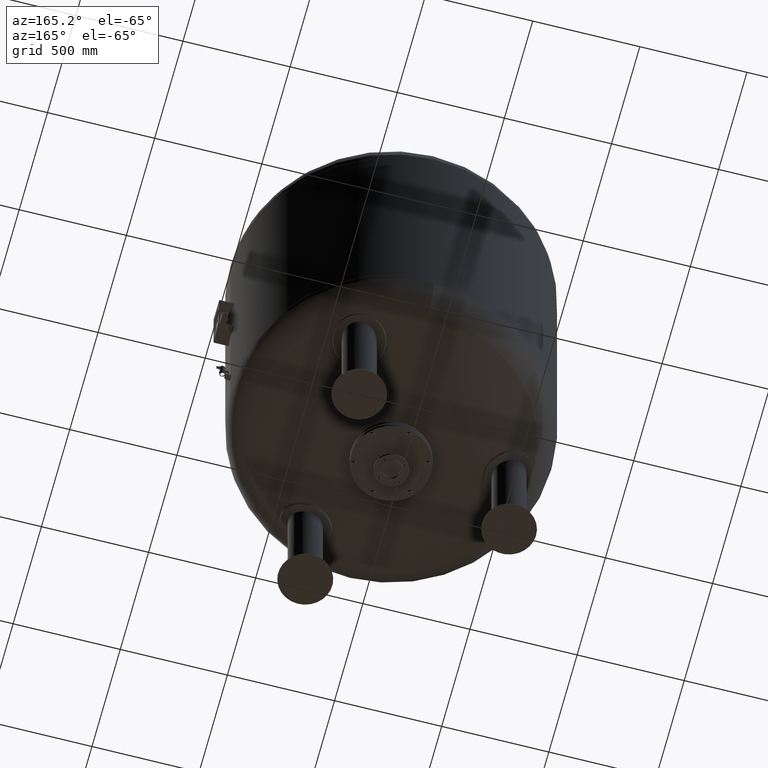
[diagram: clean part render]
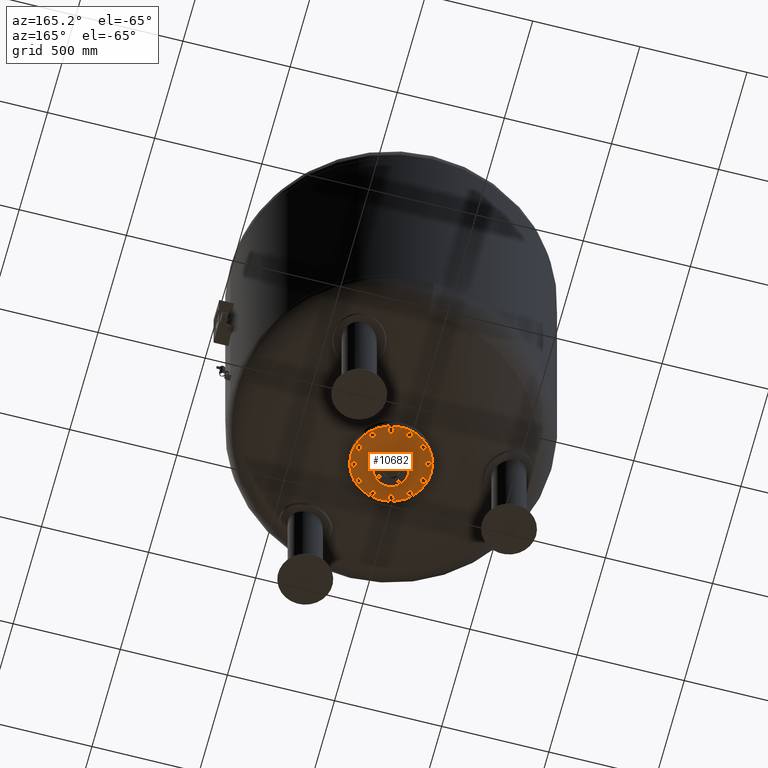
[diagram: same view with one face highlighted and labeled with its STEP entity id]
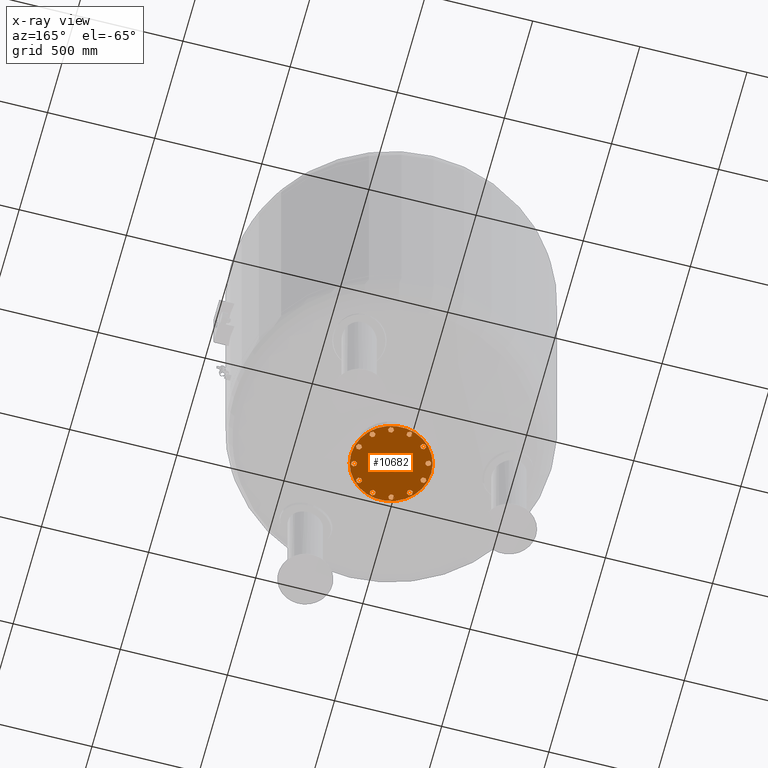
[diagram: x-ray of the same camera — body ghosted, the highlighted face saturated]
A machine part, auxiliary view. The second image highlights one B-rep face of the part: STEP entity #10682.
The next image is the same camera in x-ray: the body ghosted, the highlighted face saturated — about 0% of this face is hidden behind the body in this view.
In plain terms, the highlighted planar face has unit normal (0, 0, -1).
Its self-contained STEP definition (entity closure, byte-faithful):
#2826=CARTESIAN_POINT('',(-38.050000000000018,-4.163799E-015,413.0));
#2827=VERTEX_POINT('',#2826);
#2843=CARTESIAN_POINT('',(38.049999999999983,-8.823426E-015,413.0));
#2844=VERTEX_POINT('',#2843);
#2851=CARTESIAN_POINT('',(-8.604691E-015,-4.163799E-015,413.0));
#2852=DIRECTION('',(0.0,0.0,-1.0));
#2853=DIRECTION('',(-1.0,0.0,0.0));
#2854=AXIS2_PLACEMENT_3D('',#2851,#2852,#2853);
#2855=CIRCLE('',#2854,38.050000000000004);
#2856=EDGE_CURVE('',#2844,#2827,#2855,.T.);
#2866=CARTESIAN_POINT('',(-187.500000000000000,-4.163799E-015,413.000000000000110));
#2867=VERTEX_POINT('',#2866);
#2876=CARTESIAN_POINT('',(187.500000000000000,-2.712517E-014,413.000000000000110));
#2877=VERTEX_POINT('',#2876);
#2878=CARTESIAN_POINT('',(-8.604691E-015,-4.163799E-015,413.000000000000110));
#2879=DIRECTION('',(0.0,0.0,-1.0));
#2880=DIRECTION('',(-1.0,0.0,0.0));
#2881=AXIS2_PLACEMENT_3D('',#2878,#2879,#2880);
#2882=CIRCLE('',#2881,187.500000000000000);
#2883=EDGE_CURVE('',#2877,#2867,#2882,.T.);
#4856=CARTESIAN_POINT('',(43.352190054672320,-175.648982363969960,413.0));
#4857=VERTEX_POINT('',#4856);
#4858=CARTESIAN_POINT('',(55.352190054672313,-168.720779133694460,413.0));
#4859=VERTEX_POINT('',#4858);
#4860=CARTESIAN_POINT('',(43.352190054672320,-175.648982363969960,413.0));
#4861=DIRECTION('',(0.866025403784439,0.500000000000000,0.0));
#4862=VECTOR('',#4861,13.856406460551009);
#4863=LINE('',#4860,#4862);
#4864=EDGE_CURVE('',#4857,#4859,#4863,.T.);
#4896=CARTESIAN_POINT('',(31.352190054672334,-168.720779133694460,413.0));
#4897=VERTEX_POINT('',#4896);
#4898=CARTESIAN_POINT('',(31.352190054672334,-168.720779133694460,413.0));
#4899=DIRECTION('',(0.866025403784439,-0.500000000000000,0.0));
#4900=VECTOR('',#4899,13.856406460551002);
#4901=LINE('',#4898,#4900);
#4902=EDGE_CURVE('',#4897,#4857,#4901,.T.);
#4927=CARTESIAN_POINT('',(31.352190054672349,-154.864372673143440,413.0));
#4928=VERTEX_POINT('',#4927);
#4929=CARTESIAN_POINT('',(31.352190054672349,-154.864372673143440,413.0));
#4930=DIRECTION('',(0.0,-1.0,0.0));
#4931=VECTOR('',#4930,13.856406460551028);
#4932=LINE('',#4929,#4931);
#4933=EDGE_CURVE('',#4928,#4897,#4932,.T.);
#4958=CARTESIAN_POINT('',(43.352190054672320,-147.936169442867940,413.0));
#4959=VERTEX_POINT('',#4958);
#4960=CARTESIAN_POINT('',(43.352190054672320,-147.936169442867940,413.0));
#4961=DIRECTION('',(-0.866025403784438,-0.500000000000000,0.0));
#4962=VECTOR('',#4961,13.856406460550989);
#4963=LINE('',#4960,#4962);
#4964=EDGE_CURVE('',#4959,#4928,#4963,.T.);
#4989=CARTESIAN_POINT('',(55.352190054672313,-154.864372673143440,413.0));
#4990=VERTEX_POINT('',#4989);
#4991=CARTESIAN_POINT('',(55.352190054672313,-168.720779133694460,413.0));
#4992=DIRECTION('',(0.0,1.0,0.0));
#4993=VECTOR('',#4992,13.856406460551028);
#4994=LINE('',#4991,#4993);
#4995=EDGE_CURVE('',#4859,#4990,#4994,.T.);
#5020=CARTESIAN_POINT('',(55.352190054672313,-154.864372673143440,413.0));
#5021=DIRECTION('',(-0.866025403784439,0.500000000000000,0.0));
#5022=VECTOR('',#5021,13.856406460551009);
#5023=LINE('',#5020,#5022);
#5024=EDGE_CURVE('',#4990,#4959,#5023,.T.);
#5330=CARTESIAN_POINT('',(125.368589079022360,-130.440385848746640,413.0));
#5331=VERTEX_POINT('',#5330);
#5332=CARTESIAN_POINT('',(132.296792309297840,-118.440385848746640,413.0));
#5333=VERTEX_POINT('',#5332);
#5334=CARTESIAN_POINT('',(125.368589079022360,-130.440385848746640,413.0));
#5335=DIRECTION('',(0.499999999999999,0.866025403784439,0.0));
#5336=VECTOR('',#5335,13.856406460551007);
#5337=LINE('',#5334,#5336);
#5338=EDGE_CURVE('',#5331,#5333,#5337,.T.);
#5370=CARTESIAN_POINT('',(111.512182618471340,-130.440385848746640,413.0));
#5371=VERTEX_POINT('',#5370);
#5372=CARTESIAN_POINT('',(111.512182618471340,-130.440385848746640,413.0));
#5373=DIRECTION('',(1.0,0.0,0.0));
#5374=VECTOR('',#5373,13.856406460551014);
#5375=LINE('',#5372,#5374);
#5376=EDGE_CURVE('',#5371,#5331,#5375,.T.);
#5401=CARTESIAN_POINT('',(104.583979388195840,-118.440385848746660,413.0));
#5402=VERTEX_POINT('',#5401);
#5403=CARTESIAN_POINT('',(104.583979388195840,-118.440385848746660,413.0));
#5404=DIRECTION('',(0.500000000000000,-0.866025403784439,0.0));
#5405=VECTOR('',#5404,13.856406460551002);
#5406=LINE('',#5403,#5405);
#5407=EDGE_CURVE('',#5402,#5371,#5406,.T.);
#5432=CARTESIAN_POINT('',(111.512182618471340,-106.440385848746640,413.0));
#5433=VERTEX_POINT('',#5432);
#5434=CARTESIAN_POINT('',(111.512182618471340,-106.440385848746640,413.0));
#5435=DIRECTION('',(-0.499999999999999,-0.866025403784439,0.0));
#5436=VECTOR('',#5435,13.856406460551026);
#5437=LINE('',#5434,#5436);
#5438=EDGE_CURVE('',#5433,#5402,#5437,.T.);
#5463=CARTESIAN_POINT('',(125.368589079022340,-106.440385848746640,413.0));
#5464=VERTEX_POINT('',#5463);
#5465=CARTESIAN_POINT('',(132.296792309297840,-118.440385848746640,413.0));
#5466=DIRECTION('',(-0.500000000000000,0.866025403784439,0.0));
#5467=VECTOR('',#5466,13.856406460551014);
#5468=LINE('',#5465,#5467);
#5469=EDGE_CURVE('',#5333,#5464,#5468,.T.);
#5494=CARTESIAN_POINT('',(125.368589079022340,-106.440385848746640,413.0));
#5495=DIRECTION('',(-1.0,0.0,0.0));
#5496=VECTOR('',#5495,13.856406460551000);
#5497=LINE('',#5494,#5496);
#5498=EDGE_CURVE('',#5464,#5433,#5497,.T.);
#5804=CARTESIAN_POINT('',(173.792575903418990,-50.280393284947714,413.0));
#5805=VERTEX_POINT('',#5804);
#5806=CARTESIAN_POINT('',(173.792575903418990,-36.423986824396700,413.0));
#5807=VERTEX_POINT('',#5806);
#5808=CARTESIAN_POINT('',(173.792575903418990,-50.280393284947714,413.0));
#5809=DIRECTION('',(0.0,1.0,0.0));
#5810=VECTOR('',#5809,13.856406460551014);
#5811=LINE('',#5808,#5810);
#5812=EDGE_CURVE('',#5805,#5807,#5811,.T.);
#5844=CARTESIAN_POINT('',(161.792575903418990,-57.208596515223185,413.0));
#5845=VERTEX_POINT('',#5844);
#5846=CARTESIAN_POINT('',(161.792575903418990,-57.208596515223185,413.0));
#5847=DIRECTION('',(0.866025403784440,0.499999999999998,0.0));
#5848=VECTOR('',#5847,13.856406460551000);
#5849=LINE('',#5846,#5848);
#5850=EDGE_CURVE('',#5845,#5805,#5849,.T.);
#5875=CARTESIAN_POINT('',(149.792575903418990,-50.280393284947706,413.0));
#5876=VERTEX_POINT('',#5875);
#5877=CARTESIAN_POINT('',(149.792575903418990,-50.280393284947706,413.0));
#5878=DIRECTION('',(0.866025403784440,-0.499999999999998,0.0));
#5879=VECTOR('',#5878,13.856406460551003);
#5880=LINE('',#5877,#5879);
#5881=EDGE_CURVE('',#5876,#5845,#5880,.T.);
#5906=CARTESIAN_POINT('',(149.792575903419020,-36.423986824396692,413.0));
#5907=VERTEX_POINT('',#5906);
#5908=CARTESIAN_POINT('',(149.792575903419020,-36.423986824396692,413.0));
#5909=DIRECTION('',(0.0,-1.0,0.0));
#5910=VECTOR('',#5909,13.856406460551014);
#5911=LINE('',#5908,#5910);
#5912=EDGE_CURVE('',#5907,#5876,#5911,.T.);
#5937=CARTESIAN_POINT('',(161.792575903418990,-29.495783594121182,413.0));
#5938=VERTEX_POINT('',#5937);
#5939=CARTESIAN_POINT('',(173.792575903418990,-36.423986824396700,413.0));
#5940=DIRECTION('',(-0.866025403784438,0.500000000000000,0.0));
#5941=VECTOR('',#5940,13.856406460551023);
#5942=LINE('',#5939,#5941);
#5943=EDGE_CURVE('',#5807,#5938,#5942,.T.);
#5968=CARTESIAN_POINT('',(161.792575903418990,-29.495783594121182,413.0));
#5969=DIRECTION('',(-0.866025403784438,-0.500000000000001,0.0));
#5970=VECTOR('',#5969,13.856406460550994);
#5971=LINE('',#5968,#5970);
#5972=EDGE_CURVE('',#5938,#5907,#5971,.T.);
#6278=CARTESIAN_POINT('',(175.648982363969960,43.352190054672327,413.0));
#6279=VERTEX_POINT('',#6278);
#6280=CARTESIAN_POINT('',(168.720779133694460,55.352190054672320,413.0));
#6281=VERTEX_POINT('',#6280);
#6282=CARTESIAN_POINT('',(175.648982363969960,43.352190054672327,413.0));
#6283=DIRECTION('',(-0.500000000000000,0.866025403784439,0.0));
#6284=VECTOR('',#6283,13.856406460551009);
#6285=LINE('',#6282,#6284);
#6286=EDGE_CURVE('',#6279,#6281,#6285,.T.);
#6318=CARTESIAN_POINT('',(168.720779133694460,31.352190054672338,413.0));
#6319=VERTEX_POINT('',#6318);
#6320=CARTESIAN_POINT('',(168.720779133694460,31.352190054672338,413.0));
#6321=DIRECTION('',(0.500000000000000,0.866025403784439,0.0));
#6322=VECTOR('',#6321,13.856406460551003);
#6323=LINE('',#6320,#6322);
#6324=EDGE_CURVE('',#6319,#6279,#6323,.T.);
#6349=CARTESIAN_POINT('',(154.864372673143440,31.352190054672352,413.0));
#6350=VERTEX_POINT('',#6349);
#6351=CARTESIAN_POINT('',(154.864372673143440,31.352190054672352,413.0));
#6352=DIRECTION('',(1.0,0.0,0.0));
#6353=VECTOR('',#6352,13.856406460551028);
#6354=LINE('',#6351,#6353);
#6355=EDGE_CURVE('',#6350,#6319,#6354,.T.);
#6380=CARTESIAN_POINT('',(147.936169442867940,43.352190054672327,413.0));
#6381=VERTEX_POINT('',#6380);
#6382=CARTESIAN_POINT('',(147.936169442867940,43.352190054672327,413.0));
#6383=DIRECTION('',(0.500000000000000,-0.866025403784439,0.0));
#6384=VECTOR('',#6383,13.856406460550991);
#6385=LINE('',#6382,#6384);
#6386=EDGE_CURVE('',#6381,#6350,#6385,.T.);
#6411=CARTESIAN_POINT('',(154.864372673143440,55.352190054672320,413.0));
#6412=VERTEX_POINT('',#6411);
#6413=CARTESIAN_POINT('',(168.720779133694460,55.352190054672320,413.0));
#6414=DIRECTION('',(-1.0,0.0,0.0));
#6415=VECTOR('',#6414,13.856406460551028);
#6416=LINE('',#6413,#6415);
#6417=EDGE_CURVE('',#6281,#6412,#6416,.T.);
#6442=CARTESIAN_POINT('',(154.864372673143440,55.352190054672320,413.0));
#6443=DIRECTION('',(-0.500000000000000,-0.866025403784439,0.0));
#6444=VECTOR('',#6443,13.856406460551009);
#6445=LINE('',#6442,#6444);
#6446=EDGE_CURVE('',#6412,#6381,#6445,.T.);
#6752=CARTESIAN_POINT('',(130.440385848746670,125.368589079022270,413.0));
#6753=VERTEX_POINT('',#6752);
#6754=CARTESIAN_POINT('',(118.440385848746690,132.296792309297790,413.0));
#6755=VERTEX_POINT('',#6754);
#6756=CARTESIAN_POINT('',(130.440385848746670,125.368589079022270,413.0));
#6757=DIRECTION('',(-0.866025403784438,0.500000000000001,0.0));
#6758=VECTOR('',#6757,13.856406460551009);
#6759=LINE('',#6756,#6758);
#6760=EDGE_CURVE('',#6753,#6755,#6759,.T.);
#6792=CARTESIAN_POINT('',(130.440385848746670,111.512182618471270,413.0));
#6793=VERTEX_POINT('',#6792);
#6794=CARTESIAN_POINT('',(130.440385848746670,111.512182618471270,413.0));
#6795=DIRECTION('',(0.0,1.0,0.0));
#6796=VECTOR('',#6795,13.856406460551000);
#6797=LINE('',#6794,#6796);
#6798=EDGE_CURVE('',#6793,#6753,#6797,.T.);
#6823=CARTESIAN_POINT('',(118.440385848746700,104.583979388195790,413.0));
#6824=VERTEX_POINT('',#6823);
#6825=CARTESIAN_POINT('',(118.440385848746700,104.583979388195790,413.0));
#6826=DIRECTION('',(0.866025403784439,0.500000000000000,0.0));
#6827=VECTOR('',#6826,13.856406460550982);
#6828=LINE('',#6825,#6827);
#6829=EDGE_CURVE('',#6824,#6793,#6828,.T.);
#6854=CARTESIAN_POINT('',(106.440385848746700,111.512182618471290,413.0));
#6855=VERTEX_POINT('',#6854);
#6856=CARTESIAN_POINT('',(106.440385848746700,111.512182618471290,413.0));
#6857=DIRECTION('',(0.866025403784439,-0.500000000000000,0.0));
#6858=VECTOR('',#6857,13.856406460551014);
#6859=LINE('',#6856,#6858);
#6860=EDGE_CURVE('',#6855,#6824,#6859,.T.);
#6885=CARTESIAN_POINT('',(106.440385848746700,125.368589079022270,413.0));
#6886=VERTEX_POINT('',#6885);
#6887=CARTESIAN_POINT('',(118.440385848746690,132.296792309297790,413.0));
#6888=DIRECTION('',(-0.866025403784438,-0.500000000000001,0.0));
#6889=VECTOR('',#6888,13.856406460551009);
#6890=LINE('',#6887,#6889);
#6891=EDGE_CURVE('',#6755,#6886,#6890,.T.);
#6916=CARTESIAN_POINT('',(106.440385848746700,125.368589079022270,413.0));
#6917=DIRECTION('',(0.0,-1.0,0.0));
#6918=VECTOR('',#6917,13.856406460550986);
#6919=LINE('',#6916,#6918);
#6920=EDGE_CURVE('',#6886,#6855,#6919,.T.);
#7226=CARTESIAN_POINT('',(50.280393284947706,173.792575903418990,413.0));
#7227=VERTEX_POINT('',#7226);
#7228=CARTESIAN_POINT('',(36.423986824396678,173.792575903418940,413.0));
#7229=VERTEX_POINT('',#7228);
#7230=CARTESIAN_POINT('',(50.280393284947706,173.792575903418990,413.0));
#7231=DIRECTION('',(-1.0,0.0,0.0));
#7232=VECTOR('',#7231,13.856406460551028);
#7233=LINE('',#7230,#7232);
#7234=EDGE_CURVE('',#7227,#7229,#7233,.T.);
#7266=CARTESIAN_POINT('',(57.208596515223178,161.792575903418990,413.0));
#7267=VERTEX_POINT('',#7266);
#7268=CARTESIAN_POINT('',(57.208596515223178,161.792575903418990,413.0));
#7269=DIRECTION('',(-0.499999999999998,0.866025403784440,0.0));
#7270=VECTOR('',#7269,13.856406460551000);
#7271=LINE('',#7268,#7270);
#7272=EDGE_CURVE('',#7267,#7227,#7271,.T.);
#7297=CARTESIAN_POINT('',(50.280393284947692,149.792575903418990,413.0));
#7298=VERTEX_POINT('',#7297);
#7299=CARTESIAN_POINT('',(50.280393284947692,149.792575903418990,413.0));
#7300=DIRECTION('',(0.499999999999999,0.866025403784439,0.0));
#7301=VECTOR('',#7300,13.856406460551007);
#7302=LINE('',#7299,#7301);
#7303=EDGE_CURVE('',#7298,#7267,#7302,.T.);
#7328=CARTESIAN_POINT('',(36.423986824396678,149.792575903418990,413.0));
#7329=VERTEX_POINT('',#7328);
#7330=CARTESIAN_POINT('',(36.423986824396678,149.792575903418990,413.0));
#7331=DIRECTION('',(1.0,0.0,0.0));
#7332=VECTOR('',#7331,13.856406460551014);
#7333=LINE('',#7330,#7332);
#7334=EDGE_CURVE('',#7329,#7298,#7333,.T.);
#7359=CARTESIAN_POINT('',(29.495783594121185,161.792575903418990,413.0));
#7360=VERTEX_POINT('',#7359);
#7361=CARTESIAN_POINT('',(36.423986824396678,173.792575903418940,413.0));
#7362=DIRECTION('',(-0.500000000000001,-0.866025403784438,0.0));
#7363=VECTOR('',#7362,13.856406460550961);
#7364=LINE('',#7361,#7363);
#7365=EDGE_CURVE('',#7229,#7360,#7364,.T.);
#7390=CARTESIAN_POINT('',(29.495783594121185,161.792575903418990,413.0));
#7391=DIRECTION('',(0.499999999999999,-0.866025403784439,0.0));
#7392=VECTOR('',#7391,13.856406460551010);
#7393=LINE('',#7390,#7392);
#7394=EDGE_CURVE('',#7360,#7329,#7393,.T.);
#7700=CARTESIAN_POINT('',(-43.352190054672327,175.648982363969990,413.0));
#7701=VERTEX_POINT('',#7700);
#7702=CARTESIAN_POINT('',(-55.352190054672306,168.720779133694460,413.0));
#7703=VERTEX_POINT('',#7702);
#7704=CARTESIAN_POINT('',(-43.352190054672327,175.648982363969990,413.0));
#7705=DIRECTION('',(-0.866025403784438,-0.500000000000002,0.0));
#7706=VECTOR('',#7705,13.856406460551009);
#7707=LINE('',#7704,#7706);
#7708=EDGE_CURVE('',#7701,#7703,#7707,.T.);
#7740=CARTESIAN_POINT('',(-31.352190054672313,168.720779133694490,413.0));
#7741=VERTEX_POINT('',#7740);
#7742=CARTESIAN_POINT('',(-31.352190054672313,168.720779133694490,413.0));
#7743=DIRECTION('',(-0.866025403784439,0.499999999999999,0.0));
#7744=VECTOR('',#7743,13.856406460551026);
#7745=LINE('',#7742,#7744);
#7746=EDGE_CURVE('',#7741,#7701,#7745,.T.);
#7771=CARTESIAN_POINT('',(-31.352190054672327,154.864372673143460,413.0));
#7772=VERTEX_POINT('',#7771);
#7773=CARTESIAN_POINT('',(-31.352190054672327,154.864372673143460,413.0));
#7774=DIRECTION('',(0.0,1.0,0.0));
#7775=VECTOR('',#7774,13.856406460551028);
#7776=LINE('',#7773,#7775);
#7777=EDGE_CURVE('',#7772,#7741,#7776,.T.);
#7802=CARTESIAN_POINT('',(-43.352190054672334,147.936169442867940,413.0));
#7803=VERTEX_POINT('',#7802);
#7804=CARTESIAN_POINT('',(-43.352190054672334,147.936169442867940,413.0));
#7805=DIRECTION('',(0.866025403784438,0.500000000000001,0.0));
#7806=VECTOR('',#7805,13.856406460551034);
#7807=LINE('',#7804,#7806);
#7808=EDGE_CURVE('',#7803,#7772,#7807,.T.);
#7833=CARTESIAN_POINT('',(-55.352190054672306,154.864372673143460,413.0));
#7834=VERTEX_POINT('',#7833);
#7835=CARTESIAN_POINT('',(-55.352190054672306,168.720779133694460,413.0));
#7836=DIRECTION('',(0.0,-1.0,0.0));
#7837=VECTOR('',#7836,13.856406460551000);
#7838=LINE('',#7835,#7837);
#7839=EDGE_CURVE('',#7703,#7834,#7838,.T.);
#7864=CARTESIAN_POINT('',(-55.352190054672306,154.864372673143460,413.0));
#7865=DIRECTION('',(0.866025403784437,-0.500000000000002,0.0));
#7866=VECTOR('',#7865,13.856406460551003);
#7867=LINE('',#7864,#7866);
#7868=EDGE_CURVE('',#7834,#7803,#7867,.T.);
#8174=CARTESIAN_POINT('',(-125.368589079022270,130.440385848746700,413.0));
#8175=VERTEX_POINT('',#8174);
#8176=CARTESIAN_POINT('',(-132.296792309297790,118.440385848746690,413.0));
#8177=VERTEX_POINT('',#8176);
#8178=CARTESIAN_POINT('',(-125.368589079022270,130.440385848746700,413.0));
#8179=DIRECTION('',(-0.500000000000000,-0.866025403784439,0.0));
#8180=VECTOR('',#8179,13.856406460551034);
#8181=LINE('',#8178,#8180);
#8182=EDGE_CURVE('',#8175,#8177,#8181,.T.);
#8214=CARTESIAN_POINT('',(-111.512182618471270,130.440385848746670,413.0));
#8215=VERTEX_POINT('',#8214);
#8216=CARTESIAN_POINT('',(-111.512182618471270,130.440385848746670,413.0));
#8217=DIRECTION('',(-1.0,0.0,0.0));
#8218=VECTOR('',#8217,13.856406460551000);
#8219=LINE('',#8216,#8218);
#8220=EDGE_CURVE('',#8215,#8175,#8219,.T.);
#8245=CARTESIAN_POINT('',(-104.583979388195760,118.440385848746690,413.0));
#8246=VERTEX_POINT('',#8245);
#8247=CARTESIAN_POINT('',(-104.583979388195760,118.440385848746690,413.0));
#8248=DIRECTION('',(-0.500000000000001,0.866025403784438,0.0));
#8249=VECTOR('',#8248,13.856406460551009);
#8250=LINE('',#8247,#8249);
#8251=EDGE_CURVE('',#8246,#8215,#8250,.T.);
#8276=CARTESIAN_POINT('',(-111.512182618471270,106.440385848746700,413.0));
#8277=VERTEX_POINT('',#8276);
#8278=CARTESIAN_POINT('',(-111.512182618471270,106.440385848746700,413.0));
#8279=DIRECTION('',(0.500000000000001,0.866025403784438,0.0));
#8280=VECTOR('',#8279,13.856406460551009);
#8281=LINE('',#8278,#8280);
#8282=EDGE_CURVE('',#8277,#8246,#8281,.T.);
#8307=CARTESIAN_POINT('',(-125.368589079022270,106.440385848746700,413.0));
#8308=VERTEX_POINT('',#8307);
#8309=CARTESIAN_POINT('',(-132.296792309297790,118.440385848746690,413.0));
#8310=DIRECTION('',(0.500000000000001,-0.866025403784438,0.0));
#8311=VECTOR('',#8310,13.856406460551009);
#8312=LINE('',#8309,#8311);
#8313=EDGE_CURVE('',#8177,#8308,#8312,.T.);
#8338=CARTESIAN_POINT('',(-125.368589079022270,106.440385848746700,413.0));
#8339=DIRECTION('',(1.0,0.0,0.0));
#8340=VECTOR('',#8339,13.856406460551000);
#8341=LINE('',#8338,#8340);
#8342=EDGE_CURVE('',#8308,#8277,#8341,.T.);
#8648=CARTESIAN_POINT('',(-173.792575903418960,50.280393284947714,413.0));
#8649=VERTEX_POINT('',#8648);
#8650=CARTESIAN_POINT('',(-173.792575903418960,36.423986824396714,413.0));
#8651=VERTEX_POINT('',#8650);
#8652=CARTESIAN_POINT('',(-173.792575903418960,50.280393284947714,413.0));
#8653=DIRECTION('',(0.0,-1.0,0.0));
#8654=VECTOR('',#8653,13.856406460551000);
#8655=LINE('',#8652,#8654);
#8656=EDGE_CURVE('',#8649,#8651,#8655,.T.);
#8688=CARTESIAN_POINT('',(-161.792575903419020,57.208596515223206,413.0));
#8689=VERTEX_POINT('',#8688);
#8690=CARTESIAN_POINT('',(-161.792575903419020,57.208596515223206,413.0));
#8691=DIRECTION('',(-0.866025403784438,-0.500000000000001,0.0));
#8692=VECTOR('',#8691,13.856406460550961);
#8693=LINE('',#8690,#8692);
#8694=EDGE_CURVE('',#8689,#8649,#8693,.T.);
#8719=CARTESIAN_POINT('',(-149.792575903418990,50.280393284947714,413.0));
#8720=VERTEX_POINT('',#8719);
#8721=CARTESIAN_POINT('',(-149.792575903418990,50.280393284947714,413.0));
#8722=DIRECTION('',(-0.866025403784440,0.499999999999998,0.0));
#8723=VECTOR('',#8722,13.856406460551035);
#8724=LINE('',#8721,#8723);
#8725=EDGE_CURVE('',#8720,#8689,#8724,.T.);
#8750=CARTESIAN_POINT('',(-149.792575903418990,36.423986824396685,413.0));
#8751=VERTEX_POINT('',#8750);
#8752=CARTESIAN_POINT('',(-149.792575903418990,36.423986824396685,413.0));
#8753=DIRECTION('',(0.0,1.0,0.0));
#8754=VECTOR('',#8753,13.856406460551028);
#8755=LINE('',#8752,#8754);
#8756=EDGE_CURVE('',#8751,#8720,#8755,.T.);
#8781=CARTESIAN_POINT('',(-161.792575903418990,29.495783594121210,413.0));
#8782=VERTEX_POINT('',#8781);
#8783=CARTESIAN_POINT('',(-173.792575903418960,36.423986824396714,413.0));
#8784=DIRECTION('',(0.866025403784438,-0.500000000000001,0.0));
#8785=VECTOR('',#8784,13.856406460550991);
#8786=LINE('',#8783,#8785);
#8787=EDGE_CURVE('',#8651,#8782,#8786,.T.);
#8812=CARTESIAN_POINT('',(-161.792575903418990,29.495783594121210,413.0));
#8813=DIRECTION('',(0.866025403784440,0.499999999999998,0.0));
#8814=VECTOR('',#8813,13.856406460551002);
#8815=LINE('',#8812,#8814);
#8816=EDGE_CURVE('',#8782,#8751,#8815,.T.);
#9122=CARTESIAN_POINT('',(-175.648982363969990,-43.352190054672270,413.0));
#9123=VERTEX_POINT('',#9122);
#9124=CARTESIAN_POINT('',(-168.720779133694490,-55.352190054672263,413.0));
#9125=VERTEX_POINT('',#9124);
#9126=CARTESIAN_POINT('',(-175.648982363969990,-43.352190054672270,413.0));
#9127=DIRECTION('',(0.500000000000000,-0.866025403784439,0.0));
#9128=VECTOR('',#9127,13.856406460551009);
#9129=LINE('',#9126,#9128);
#9130=EDGE_CURVE('',#9123,#9125,#9129,.T.);
#9162=CARTESIAN_POINT('',(-168.720779133694490,-31.352190054672281,413.0));
#9163=VERTEX_POINT('',#9162);
#9164=CARTESIAN_POINT('',(-168.720779133694490,-31.352190054672281,413.0));
#9165=DIRECTION('',(-0.500000000000000,-0.866025403784439,0.0));
#9166=VECTOR('',#9165,13.856406460551003);
#9167=LINE('',#9164,#9166);
#9168=EDGE_CURVE('',#9163,#9123,#9167,.T.);
#9193=CARTESIAN_POINT('',(-154.864372673143460,-31.352190054672299,413.0));
#9194=VERTEX_POINT('',#9193);
#9195=CARTESIAN_POINT('',(-154.864372673143460,-31.352190054672299,413.0));
#9196=DIRECTION('',(-1.0,0.0,0.0));
#9197=VECTOR('',#9196,13.856406460551028);
#9198=LINE('',#9195,#9197);
#9199=EDGE_CURVE('',#9194,#9163,#9198,.T.);
#9224=CARTESIAN_POINT('',(-147.936169442867960,-43.352190054672299,413.0));
#9225=VERTEX_POINT('',#9224);
#9226=CARTESIAN_POINT('',(-147.936169442867960,-43.352190054672299,413.0));
#9227=DIRECTION('',(-0.500000000000000,0.866025403784439,0.0));
#9228=VECTOR('',#9227,13.856406460551014);
#9229=LINE('',#9226,#9228);
#9230=EDGE_CURVE('',#9225,#9194,#9229,.T.);
#9255=CARTESIAN_POINT('',(-154.864372673143460,-55.352190054672263,413.0));
#9256=VERTEX_POINT('',#9255);
#9257=CARTESIAN_POINT('',(-168.720779133694490,-55.352190054672263,413.0));
#9258=DIRECTION('',(1.0,0.0,0.0));
#9259=VECTOR('',#9258,13.856406460551028);
#9260=LINE('',#9257,#9259);
#9261=EDGE_CURVE('',#9125,#9256,#9260,.T.);
#9286=CARTESIAN_POINT('',(-154.864372673143460,-55.352190054672263,413.0));
#9287=DIRECTION('',(0.500000000000001,0.866025403784438,0.0));
#9288=VECTOR('',#9287,13.856406460550984);
#9289=LINE('',#9286,#9288);
#9290=EDGE_CURVE('',#9256,#9225,#9289,.T.);
#9596=CARTESIAN_POINT('',(-130.440385848746730,-125.368589079022260,413.0));
#9597=VERTEX_POINT('',#9596);
#9598=CARTESIAN_POINT('',(-118.440385848746730,-132.296792309297760,413.0));
#9599=VERTEX_POINT('',#9598);
#9600=CARTESIAN_POINT('',(-130.440385848746730,-125.368589079022260,413.0));
#9601=DIRECTION('',(0.866025403784439,-0.500000000000000,0.0));
#9602=VECTOR('',#9601,13.856406460551014);
#9603=LINE('',#9600,#9602);
#9604=EDGE_CURVE('',#9597,#9599,#9603,.T.);
#9636=CARTESIAN_POINT('',(-130.440385848746700,-111.512182618471260,413.0));
#9637=VERTEX_POINT('',#9636);
#9638=CARTESIAN_POINT('',(-130.440385848746700,-111.512182618471260,413.0));
#9639=DIRECTION('',(0.0,-1.0,0.0));
#9640=VECTOR('',#9639,13.856406460551000);
#9641=LINE('',#9638,#9640);
#9642=EDGE_CURVE('',#9637,#9597,#9641,.T.);
#9667=CARTESIAN_POINT('',(-118.440385848746700,-104.583979388195760,413.0));
#9668=VERTEX_POINT('',#9667);
#9669=CARTESIAN_POINT('',(-118.440385848746700,-104.583979388195760,413.0));
#9670=DIRECTION('',(-0.866025403784439,-0.500000000000000,0.0));
#9671=VECTOR('',#9670,13.856406460551014);
#9672=LINE('',#9669,#9671);
#9673=EDGE_CURVE('',#9668,#9637,#9672,.T.);
#9698=CARTESIAN_POINT('',(-106.440385848746710,-111.512182618471270,413.0));
#9699=VERTEX_POINT('',#9698);
#9700=CARTESIAN_POINT('',(-106.440385848746710,-111.512182618471270,413.0));
#9701=DIRECTION('',(-0.866025403784438,0.500000000000001,0.0));
#9702=VECTOR('',#9701,13.856406460551009);
#9703=LINE('',#9700,#9702);
#9704=EDGE_CURVE('',#9699,#9668,#9703,.T.);
#9729=CARTESIAN_POINT('',(-106.440385848746710,-125.368589079022260,413.0));
#9730=VERTEX_POINT('',#9729);
#9731=CARTESIAN_POINT('',(-118.440385848746730,-132.296792309297760,413.0));
#9732=DIRECTION('',(0.866025403784439,0.499999999999999,0.0));
#9733=VECTOR('',#9732,13.856406460551026);
#9734=LINE('',#9731,#9733);
#9735=EDGE_CURVE('',#9599,#9730,#9734,.T.);
#9760=CARTESIAN_POINT('',(-106.440385848746710,-125.368589079022260,413.0));
#9761=DIRECTION('',(0.0,1.0,0.0));
#9762=VECTOR('',#9761,13.856406460550986);
#9763=LINE('',#9760,#9762);
#9764=EDGE_CURVE('',#9730,#9699,#9763,.T.);
#10366=CARTESIAN_POINT('',(-50.280393284947756,-173.792575903418960,413.0));
#10367=VERTEX_POINT('',#10366);
#10368=CARTESIAN_POINT('',(-36.423986824396742,-173.792575903418960,413.0));
#10369=VERTEX_POINT('',#10368);
#10370=CARTESIAN_POINT('',(-50.280393284947756,-173.792575903418960,413.0));
#10371=DIRECTION('',(1.0,0.0,0.0));
#10372=VECTOR('',#10371,13.856406460551014);
#10373=LINE('',#10370,#10372);
#10374=EDGE_CURVE('',#10367,#10369,#10373,.T.);
#10406=CARTESIAN_POINT('',(-57.208596515223249,-161.792575903418990,413.0));
#10407=VERTEX_POINT('',#10406);
#10408=CARTESIAN_POINT('',(-57.208596515223249,-161.792575903418990,413.0));
#10409=DIRECTION('',(0.500000000000000,-0.866025403784439,0.0));
#10410=VECTOR('',#10409,13.856406460550986);
#10411=LINE('',#10408,#10410);
#10412=EDGE_CURVE('',#10407,#10367,#10411,.T.);
#10437=CARTESIAN_POINT('',(-50.280393284947735,-149.792575903418990,413.0));
#10438=VERTEX_POINT('',#10437);
#10439=CARTESIAN_POINT('',(-50.280393284947735,-149.792575903418990,413.0));
#10440=DIRECTION('',(-0.500000000000000,-0.866025403784438,0.0));
#10441=VECTOR('',#10440,13.856406460551021);
#10442=LINE('',#10439,#10441);
#10443=EDGE_CURVE('',#10438,#10407,#10442,.T.);
#10468=CARTESIAN_POINT('',(-36.423986824396721,-149.792575903418990,413.0));
#10469=VERTEX_POINT('',#10468);
#10470=CARTESIAN_POINT('',(-36.423986824396721,-149.792575903418990,413.0));
#10471=DIRECTION('',(-1.0,0.0,0.0));
#10472=VECTOR('',#10471,13.856406460551014);
#10473=LINE('',#10470,#10472);
#10474=EDGE_CURVE('',#10469,#10438,#10473,.T.);
#10499=CARTESIAN_POINT('',(-29.495783594121228,-161.792575903418990,413.0));
#10500=VERTEX_POINT('',#10499);
#10501=CARTESIAN_POINT('',(-36.423986824396742,-173.792575903418960,413.0));
#10502=DIRECTION('',(0.500000000000001,0.866025403784438,0.0));
#10503=VECTOR('',#10502,13.856406460550996);
#10504=LINE('',#10501,#10503);
#10505=EDGE_CURVE('',#10369,#10500,#10504,.T.);
#10530=CARTESIAN_POINT('',(-29.495783594121228,-161.792575903418990,413.0));
#10531=DIRECTION('',(-0.499999999999999,0.866025403784439,0.0));
#10532=VECTOR('',#10531,13.856406460551010);
#10533=LINE('',#10530,#10532);
#10534=EDGE_CURVE('',#10500,#10469,#10533,.T.);
#10561=CARTESIAN_POINT('',(-19.025000000000009,-4.163799E-015,413.0));
#10562=DIRECTION('',(0.0,0.0,-1.0));
#10563=DIRECTION('',(0.0,-1.0,0.0));
#10564=AXIS2_PLACEMENT_3D('',#10561,#10562,#10563);
#10565=PLANE('',#10564);
#10566=CARTESIAN_POINT('',(-8.604691E-015,-4.163799E-015,413.000000000000110));
#10567=DIRECTION('',(0.0,0.0,-1.0));
#10568=DIRECTION('',(-1.0,0.0,0.0));
#10569=AXIS2_PLACEMENT_3D('',#10566,#10567,#10568);
#10570=CIRCLE('',#10569,187.500000000000000);
#10571=EDGE_CURVE('',#2867,#2877,#10570,.T.);
#10572=ORIENTED_EDGE('',*,*,#10571,.T.);
#10573=ORIENTED_EDGE('',*,*,#2883,.T.);
#10574=EDGE_LOOP('',(#10572,#10573));
#10575=FACE_OUTER_BOUND('',#10574,.T.);
#10576=ORIENTED_EDGE('',*,*,#4864,.T.);
#10577=ORIENTED_EDGE('',*,*,#4995,.T.);
#10578=ORIENTED_EDGE('',*,*,#5024,.T.);
#10579=ORIENTED_EDGE('',*,*,#4964,.T.);
#10580=ORIENTED_EDGE('',*,*,#4933,.T.);
#10581=ORIENTED_EDGE('',*,*,#4902,.T.);
#10582=EDGE_LOOP('',(#10576,#10577,#10578,#10579,#10580,#10581));
#10583=FACE_BOUND('',#10582,.T.);
#10584=ORIENTED_EDGE('',*,*,#5338,.T.);
#10585=ORIENTED_EDGE('',*,*,#5469,.T.);
#10586=ORIENTED_EDGE('',*,*,#5498,.T.);
#10587=ORIENTED_EDGE('',*,*,#5438,.T.);
#10588=ORIENTED_EDGE('',*,*,#5407,.T.);
#10589=ORIENTED_EDGE('',*,*,#5376,.T.);
#10590=EDGE_LOOP('',(#10584,#10585,#10586,#10587,#10588,#10589));
#10591=FACE_BOUND('',#10590,.T.);
#10592=ORIENTED_EDGE('',*,*,#5812,.T.);
#10593=ORIENTED_EDGE('',*,*,#5943,.T.);
#10594=ORIENTED_EDGE('',*,*,#5972,.T.);
#10595=ORIENTED_EDGE('',*,*,#5912,.T.);
#10596=ORIENTED_EDGE('',*,*,#5881,.T.);
#10597=ORIENTED_EDGE('',*,*,#5850,.T.);
#10598=EDGE_LOOP('',(#10592,#10593,#10594,#10595,#10596,#10597));
#10599=FACE_BOUND('',#10598,.T.);
#10600=ORIENTED_EDGE('',*,*,#6286,.T.);
#10601=ORIENTED_EDGE('',*,*,#6417,.T.);
#10602=ORIENTED_EDGE('',*,*,#6446,.T.);
#10603=ORIENTED_EDGE('',*,*,#6386,.T.);
#10604=ORIENTED_EDGE('',*,*,#6355,.T.);
#10605=ORIENTED_EDGE('',*,*,#6324,.T.);
#10606=EDGE_LOOP('',(#10600,#10601,#10602,#10603,#10604,#10605));
#10607=FACE_BOUND('',#10606,.T.);
#10608=ORIENTED_EDGE('',*,*,#6760,.T.);
#10609=ORIENTED_EDGE('',*,*,#6891,.T.);
#10610=ORIENTED_EDGE('',*,*,#6920,.T.);
#10611=ORIENTED_EDGE('',*,*,#6860,.T.);
#10612=ORIENTED_EDGE('',*,*,#6829,.T.);
#10613=ORIENTED_EDGE('',*,*,#6798,.T.);
#10614=EDGE_LOOP('',(#10608,#10609,#10610,#10611,#10612,#10613));
#10615=FACE_BOUND('',#10614,.T.);
#10616=ORIENTED_EDGE('',*,*,#7234,.T.);
#10617=ORIENTED_EDGE('',*,*,#7365,.T.);
#10618=ORIENTED_EDGE('',*,*,#7394,.T.);
#10619=ORIENTED_EDGE('',*,*,#7334,.T.);
#10620=ORIENTED_EDGE('',*,*,#7303,.T.);
#10621=ORIENTED_EDGE('',*,*,#7272,.T.);
#10622=EDGE_LOOP('',(#10616,#10617,#10618,#10619,#10620,#10621));
#10623=FACE_BOUND('',#10622,.T.);
#10624=ORIENTED_EDGE('',*,*,#7708,.T.);
#10625=ORIENTED_EDGE('',*,*,#7839,.T.);
#10626=ORIENTED_EDGE('',*,*,#7868,.T.);
#10627=ORIENTED_EDGE('',*,*,#7808,.T.);
#10628=ORIENTED_EDGE('',*,*,#7777,.T.);
#10629=ORIENTED_EDGE('',*,*,#7746,.T.);
#10630=EDGE_LOOP('',(#10624,#10625,#10626,#10627,#10628,#10629));
#10631=FACE_BOUND('',#10630,.T.);
#10632=ORIENTED_EDGE('',*,*,#8182,.T.);
#10633=ORIENTED_EDGE('',*,*,#8313,.T.);
#10634=ORIENTED_EDGE('',*,*,#8342,.T.);
#10635=ORIENTED_EDGE('',*,*,#8282,.T.);
#10636=ORIENTED_EDGE('',*,*,#8251,.T.);
#10637=ORIENTED_EDGE('',*,*,#8220,.T.);
#10638=EDGE_LOOP('',(#10632,#10633,#10634,#10635,#10636,#10637));
#10639=FACE_BOUND('',#10638,.T.);
#10640=ORIENTED_EDGE('',*,*,#8656,.T.);
#10641=ORIENTED_EDGE('',*,*,#8787,.T.);
#10642=ORIENTED_EDGE('',*,*,#8816,.T.);
#10643=ORIENTED_EDGE('',*,*,#8756,.T.);
#10644=ORIENTED_EDGE('',*,*,#8725,.T.);
#10645=ORIENTED_EDGE('',*,*,#8694,.T.);
#10646=EDGE_LOOP('',(#10640,#10641,#10642,#10643,#10644,#10645));
#10647=FACE_BOUND('',#10646,.T.);
#10648=ORIENTED_EDGE('',*,*,#9130,.T.);
#10649=ORIENTED_EDGE('',*,*,#9261,.T.);
#10650=ORIENTED_EDGE('',*,*,#9290,.T.);
#10651=ORIENTED_EDGE('',*,*,#9230,.T.);
#10652=ORIENTED_EDGE('',*,*,#9199,.T.);
#10653=ORIENTED_EDGE('',*,*,#9168,.T.);
#10654=EDGE_LOOP('',(#10648,#10649,#10650,#10651,#10652,#10653));
#10655=FACE_BOUND('',#10654,.T.);
#10656=ORIENTED_EDGE('',*,*,#9604,.T.);
#10657=ORIENTED_EDGE('',*,*,#9735,.T.);
#10658=ORIENTED_EDGE('',*,*,#9764,.T.);
#10659=ORIENTED_EDGE('',*,*,#9704,.T.);
#10660=ORIENTED_EDGE('',*,*,#9673,.T.);
#10661=ORIENTED_EDGE('',*,*,#9642,.T.);
#10662=EDGE_LOOP('',(#10656,#10657,#10658,#10659,#10660,#10661));
#10663=FACE_BOUND('',#10662,.T.);
#10664=ORIENTED_EDGE('',*,*,#10374,.T.);
#10665=ORIENTED_EDGE('',*,*,#10505,.T.);
#10666=ORIENTED_EDGE('',*,*,#10534,.T.);
#10667=ORIENTED_EDGE('',*,*,#10474,.T.);
#10668=ORIENTED_EDGE('',*,*,#10443,.T.);
#10669=ORIENTED_EDGE('',*,*,#10412,.T.);
#10670=EDGE_LOOP('',(#10664,#10665,#10666,#10667,#10668,#10669));
#10671=FACE_BOUND('',#10670,.T.);
#10672=CARTESIAN_POINT('',(-8.604691E-015,-4.163799E-015,413.0));
#10673=DIRECTION('',(0.0,0.0,-1.0));
#10674=DIRECTION('',(-1.0,0.0,0.0));
#10675=AXIS2_PLACEMENT_3D('',#10672,#10673,#10674);
#10676=CIRCLE('',#10675,38.050000000000004);
#10677=EDGE_CURVE('',#2827,#2844,#10676,.T.);
#10678=ORIENTED_EDGE('',*,*,#10677,.F.);
#10679=ORIENTED_EDGE('',*,*,#2856,.F.);
#10680=EDGE_LOOP('',(#10678,#10679));
#10681=FACE_BOUND('',#10680,.T.);
#10682=ADVANCED_FACE('',(#10575,#10583,#10591,#10599,#10607,#10615,#10623,#10631,#10639,#10647,#10655,#10663,#10671,#10681),#10565,.T.);